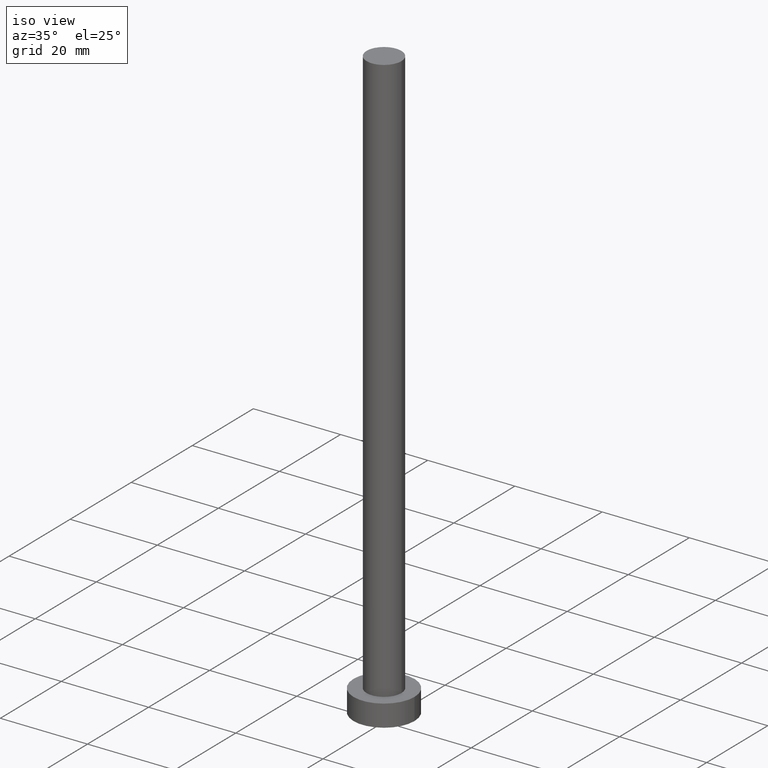
[diagram: clean part render]
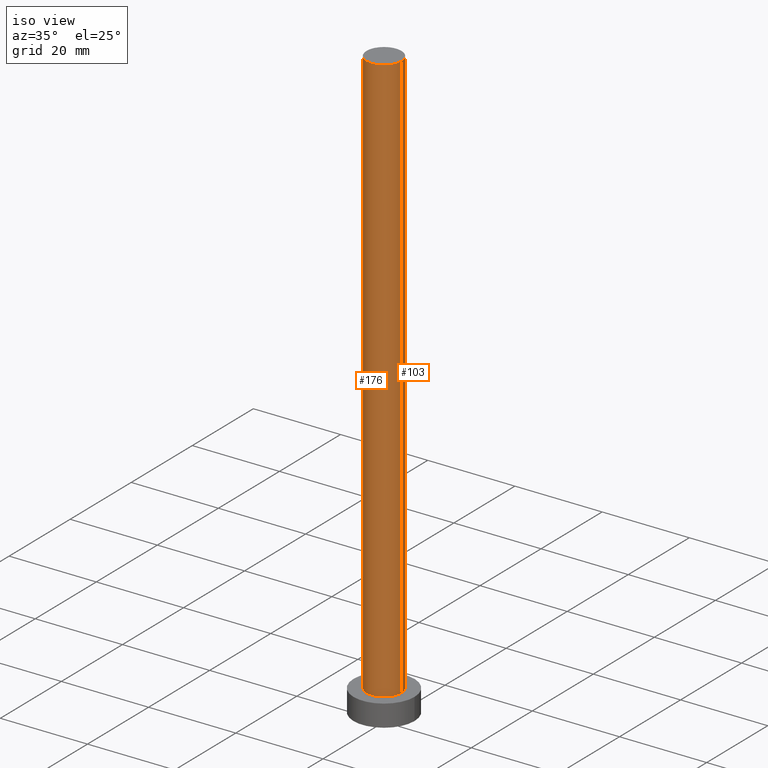
[diagram: same view with one multi-face feature highlighted, each face labeled with its STEP entity id]
A machine part, iso view. The highlighted faces form ONE feature: a constant-radius fillet chain: 2 tangent blend faces with common blend radius 4 mm. The faces share edges in the B-rep.
Their STEP definitions:
[1] entity #103 (Cylinder):
#2 = CARTESIAN_POINT ( 'NONE',  ( -4.000000000000000000, 0.000000000000000000, 136.0000000000000000 ) ) ;
#4 = FACE_OUTER_BOUND ( 'NONE', #220, .T. ) ;
#9 = CARTESIAN_POINT ( 'NONE',  ( 0.000000000000000000, 0.000000000000000000, 136.0000000000000000 ) ) ;
#27 = AXIS2_PLACEMENT_3D ( 'NONE', #225, #44, #148 ) ;
#29 = VERTEX_POINT ( 'NONE', #96 ) ;
#37 = LINE ( 'NONE', #2, #215 ) ;
#44 = DIRECTION ( 'NONE',  ( 0.000000000000000000, 0.000000000000000000, 1.000000000000000000 ) ) ;
#48 = DIRECTION ( 'NONE',  ( 0.000000000000000000, 0.000000000000000000, 1.000000000000000000 ) ) ;
#53 = AXIS2_PLACEMENT_3D ( 'NONE', #9, #48, #130 ) ;
#76 = EDGE_CURVE ( 'NONE', #243, #93, #37, .T. ) ;
#80 = LINE ( 'NONE', #175, #144 ) ;
#86 = CYLINDRICAL_SURFACE ( 'NONE', #206, 4.000000000000000000 ) ;
#87 = CARTESIAN_POINT ( 'NONE',  ( 0.000000000000000000, 0.000000000000000000, 136.0000000000000000 ) ) ;
#89 = CIRCLE ( 'NONE', #27, 4.000000000000000000 ) ;
#93 = VERTEX_POINT ( 'NONE', #156 ) ;
#96 = CARTESIAN_POINT ( 'NONE',  ( 4.000000000000000000, 4.898587196589412829E-16, 5.000000000000000000 ) ) ;
#97 = EDGE_CURVE ( 'NONE', #196, #29, #80, .T. ) ;
#98 = CARTESIAN_POINT ( 'NONE',  ( 4.000000000000000000, 4.898587196589412829E-16, 136.0000000000000000 ) ) ;
#103 = ADVANCED_FACE ( 'NONE', ( #4 ), #86, .T. ) ;
#112 = DIRECTION ( 'NONE',  ( -1.000000000000000000, 0.000000000000000000, 0.000000000000000000 ) ) ;
#116 = ORIENTED_EDGE ( 'NONE', *, *, #97, .T. ) ;
#118 = ORIENTED_EDGE ( 'NONE', *, *, #76, .F. ) ;
#121 = CARTESIAN_POINT ( 'NONE',  ( -4.000000000000000000, 0.000000000000000000, 136.0000000000000000 ) ) ;
#130 = DIRECTION ( 'NONE',  ( 1.000000000000000000, 0.000000000000000000, 0.000000000000000000 ) ) ;
#138 = CIRCLE ( 'NONE', #53, 4.000000000000000000 ) ;
#143 = ORIENTED_EDGE ( 'NONE', *, *, #146, .T. ) ;
#144 = VECTOR ( 'NONE', #154, 1000.000000000000000 ) ;
#145 = ORIENTED_EDGE ( 'NONE', *, *, #253, .F. ) ;
#146 = EDGE_CURVE ( 'NONE', #29, #93, #89, .T. ) ;
#148 = DIRECTION ( 'NONE',  ( 1.000000000000000000, 0.000000000000000000, 0.000000000000000000 ) ) ;
#154 = DIRECTION ( 'NONE',  ( -0.000000000000000000, -0.000000000000000000, -1.000000000000000000 ) ) ;
#156 = CARTESIAN_POINT ( 'NONE',  ( -4.000000000000000000, 0.000000000000000000, 5.000000000000000000 ) ) ;
#157 = DIRECTION ( 'NONE',  ( -0.000000000000000000, -0.000000000000000000, -1.000000000000000000 ) ) ;
#175 = CARTESIAN_POINT ( 'NONE',  ( 4.000000000000000000, 4.898587196589412829E-16, 136.0000000000000000 ) ) ;
#196 = VERTEX_POINT ( 'NONE', #98 ) ;
#206 = AXIS2_PLACEMENT_3D ( 'NONE', #87, #157, #112 ) ;
#215 = VECTOR ( 'NONE', #237, 1000.000000000000000 ) ;
#220 = EDGE_LOOP ( 'NONE', ( #145, #116, #143, #118 ) ) ;
#225 = CARTESIAN_POINT ( 'NONE',  ( 0.000000000000000000, 0.000000000000000000, 5.000000000000000000 ) ) ;
#237 = DIRECTION ( 'NONE',  ( -0.000000000000000000, -0.000000000000000000, -1.000000000000000000 ) ) ;
#243 = VERTEX_POINT ( 'NONE', #121 ) ;
#253 = EDGE_CURVE ( 'NONE', #196, #243, #138, .T. ) ;
[2] entity #176 (Cylinder):
#2 = CARTESIAN_POINT ( 'NONE',  ( -4.000000000000000000, 0.000000000000000000, 136.0000000000000000 ) ) ;
#25 = DIRECTION ( 'NONE',  ( 1.000000000000000000, 0.000000000000000000, 0.000000000000000000 ) ) ;
#26 = DIRECTION ( 'NONE',  ( -0.000000000000000000, -0.000000000000000000, -1.000000000000000000 ) ) ;
#29 = VERTEX_POINT ( 'NONE', #96 ) ;
#37 = LINE ( 'NONE', #2, #215 ) ;
#38 = ORIENTED_EDGE ( 'NONE', *, *, #97, .F. ) ;
#41 = AXIS2_PLACEMENT_3D ( 'NONE', #82, #251, #178 ) ;
#46 = CARTESIAN_POINT ( 'NONE',  ( 0.000000000000000000, 0.000000000000000000, 5.000000000000000000 ) ) ;
#56 = ORIENTED_EDGE ( 'NONE', *, *, #76, .T. ) ;
#68 = AXIS2_PLACEMENT_3D ( 'NONE', #46, #139, #25 ) ;
#76 = EDGE_CURVE ( 'NONE', #243, #93, #37, .T. ) ;
#80 = LINE ( 'NONE', #175, #144 ) ;
#82 = CARTESIAN_POINT ( 'NONE',  ( 0.000000000000000000, 0.000000000000000000, 136.0000000000000000 ) ) ;
#84 = CIRCLE ( 'NONE', #41, 4.000000000000000000 ) ;
#91 = EDGE_CURVE ( 'NONE', #243, #196, #84, .T. ) ;
#93 = VERTEX_POINT ( 'NONE', #156 ) ;
#94 = EDGE_LOOP ( 'NONE', ( #38, #136, #56, #222 ) ) ;
#96 = CARTESIAN_POINT ( 'NONE',  ( 4.000000000000000000, 4.898587196589412829E-16, 5.000000000000000000 ) ) ;
#97 = EDGE_CURVE ( 'NONE', #196, #29, #80, .T. ) ;
#98 = CARTESIAN_POINT ( 'NONE',  ( 4.000000000000000000, 4.898587196589412829E-16, 136.0000000000000000 ) ) ;
#102 = DIRECTION ( 'NONE',  ( -1.000000000000000000, 0.000000000000000000, 0.000000000000000000 ) ) ;
#120 = CARTESIAN_POINT ( 'NONE',  ( 0.000000000000000000, 0.000000000000000000, 136.0000000000000000 ) ) ;
#121 = CARTESIAN_POINT ( 'NONE',  ( -4.000000000000000000, 0.000000000000000000, 136.0000000000000000 ) ) ;
#136 = ORIENTED_EDGE ( 'NONE', *, *, #91, .F. ) ;
#139 = DIRECTION ( 'NONE',  ( 0.000000000000000000, 0.000000000000000000, 1.000000000000000000 ) ) ;
#141 = FACE_OUTER_BOUND ( 'NONE', #94, .T. ) ;
#142 = CYLINDRICAL_SURFACE ( 'NONE', #168, 4.000000000000000000 ) ;
#144 = VECTOR ( 'NONE', #154, 1000.000000000000000 ) ;
#154 = DIRECTION ( 'NONE',  ( -0.000000000000000000, -0.000000000000000000, -1.000000000000000000 ) ) ;
#156 = CARTESIAN_POINT ( 'NONE',  ( -4.000000000000000000, 0.000000000000000000, 5.000000000000000000 ) ) ;
#168 = AXIS2_PLACEMENT_3D ( 'NONE', #120, #26, #102 ) ;
#171 = CIRCLE ( 'NONE', #68, 4.000000000000000000 ) ;
#175 = CARTESIAN_POINT ( 'NONE',  ( 4.000000000000000000, 4.898587196589412829E-16, 136.0000000000000000 ) ) ;
#176 = ADVANCED_FACE ( 'NONE', ( #141 ), #142, .T. ) ;
#178 = DIRECTION ( 'NONE',  ( 1.000000000000000000, 0.000000000000000000, 0.000000000000000000 ) ) ;
#196 = VERTEX_POINT ( 'NONE', #98 ) ;
#215 = VECTOR ( 'NONE', #237, 1000.000000000000000 ) ;
#222 = ORIENTED_EDGE ( 'NONE', *, *, #227, .T. ) ;
#227 = EDGE_CURVE ( 'NONE', #93, #29, #171, .T. ) ;
#237 = DIRECTION ( 'NONE',  ( -0.000000000000000000, -0.000000000000000000, -1.000000000000000000 ) ) ;
#243 = VERTEX_POINT ( 'NONE', #121 ) ;
#251 = DIRECTION ( 'NONE',  ( 0.000000000000000000, 0.000000000000000000, 1.000000000000000000 ) ) ;